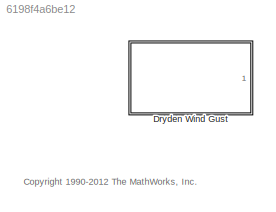
MODEL slx_6198f4a6be12
KIND library
CONFIG AbsTol = auto
CONFIG EnableMultiTasking = off
CONFIG FixedStep = auto
CONFIG MaxStep = auto
CONFIG MinStep = auto
CONFIG RelTol = 1e-3
CONFIG SampleTimeConstraint = Unconstrained
CONFIG Solver = ode45
CONFIG SolverName = ode45
CONFIG StartTime = 0.0
CONFIG StopTime = 10.0
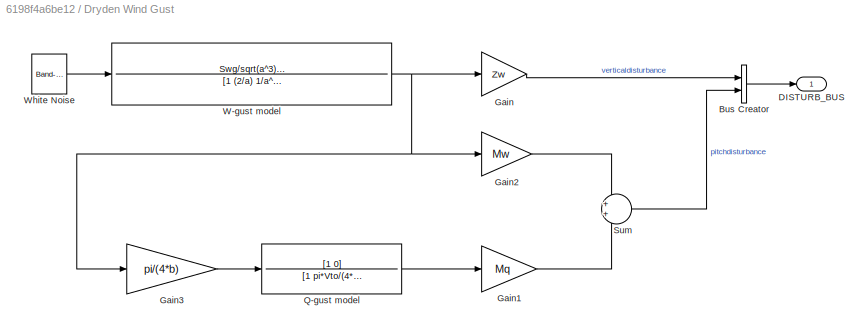
BLOCK [SubSystem] Dryden Wind Gust
  Ports = [0, 1]
  RequestExecContextInheritance = off
BLOCK [BusCreator] Dryden Wind Gust/Bus Creator
  DisplayOption = bar
  InheritFromInputs = on
  Inputs = 'verticaldisturbance','pitchdisturbance'
  OutDataTypeStr = Bus: DISTURB_BUS
  Ports = [2, 1]
BLOCK [Outport] Dryden Wind Gust/DISTURB_BUS
  OutDataTypeStr = Bus: DISTURB_BUS
BLOCK [Gain] Dryden Wind Gust/Gain
  Gain = Zw
  OutDataTypeStr = Inherit: Same as input
  ParamDataTypeStr = Inherit: Same as input
  SaturateOnIntegerOverflow = on
BLOCK [Gain] Dryden Wind Gust/Gain1
  Gain = Mq
  OutDataTypeStr = Inherit: Same as input
  ParamDataTypeStr = Inherit: Same as input
  SaturateOnIntegerOverflow = on
BLOCK [Gain] Dryden Wind Gust/Gain2
  Gain = Mw
  OutDataTypeStr = Inherit: Same as input
  ParamDataTypeStr = Inherit: Same as input
  SaturateOnIntegerOverflow = on
BLOCK [Gain] Dryden Wind Gust/Gain3
  Gain = pi/(4*b)
  OutDataTypeStr = Inherit: Same as input
  ParamDataTypeStr = Inherit: Same as input
  SaturateOnIntegerOverflow = on
BLOCK [TransferFcn] Dryden Wind Gust/Q-gust model
  Denominator = [1 pi*Vto/(4*b)]
  Numerator = [1 0]
BLOCK [Sum] Dryden Wind Gust/Sum
  InputSameDT = on
  OutDataTypeStr = Inherit: Same as first input
  Ports = [2, 1]
  SaturateOnIntegerOverflow = on
BLOCK [TransferFcn] Dryden Wind Gust/W-gust model
  Denominator = [1 (2/a) 1/a^2]
  Numerator = Swg/sqrt(a^3)*[sqrt(3)*a,1]
BLOCK [Reference] Dryden Wind Gust/White Noise  REF=simulink/Sources/Band-Limited
White Noise
  Ports = [0, 1]
  SourceBlock = simulink/Sources/Band-Limited\nWhite Noise
  SourceProductBaseCode = SL
  SourceType = Band-Limited White Noise.
ANNOTATION (root): <copyright redacted>
LINE Dryden Wind Gust/Bus Creator:1 -> Dryden Wind Gust/DISTURB_BUS:1
LINE Dryden Wind Gust/Gain1:1 -> Dryden Wind Gust/Sum:2
LINE Dryden Wind Gust/Gain2:1 -> Dryden Wind Gust/Sum:1
LINE Dryden Wind Gust/Gain3:1 -> Dryden Wind Gust/Q-gust model:1
LINE Dryden Wind Gust/Gain:1 -> Dryden Wind Gust/Bus Creator:1
LINE Dryden Wind Gust/Q-gust model:1 -> Dryden Wind Gust/Gain1:1
LINE Dryden Wind Gust/Sum:1 -> Dryden Wind Gust/Bus Creator:2
NET Dryden Wind Gust/W-gust model:1 -> Dryden Wind Gust/Gain2:1, Dryden Wind Gust/Gain3:1, Dryden Wind Gust/Gain:1
LINE Dryden Wind Gust/White Noise:1 -> Dryden Wind Gust/W-gust model:1
note: NET lines group one-source signal fan-out (src -> all destinations, sorted); 1:1 wires keep LINE
